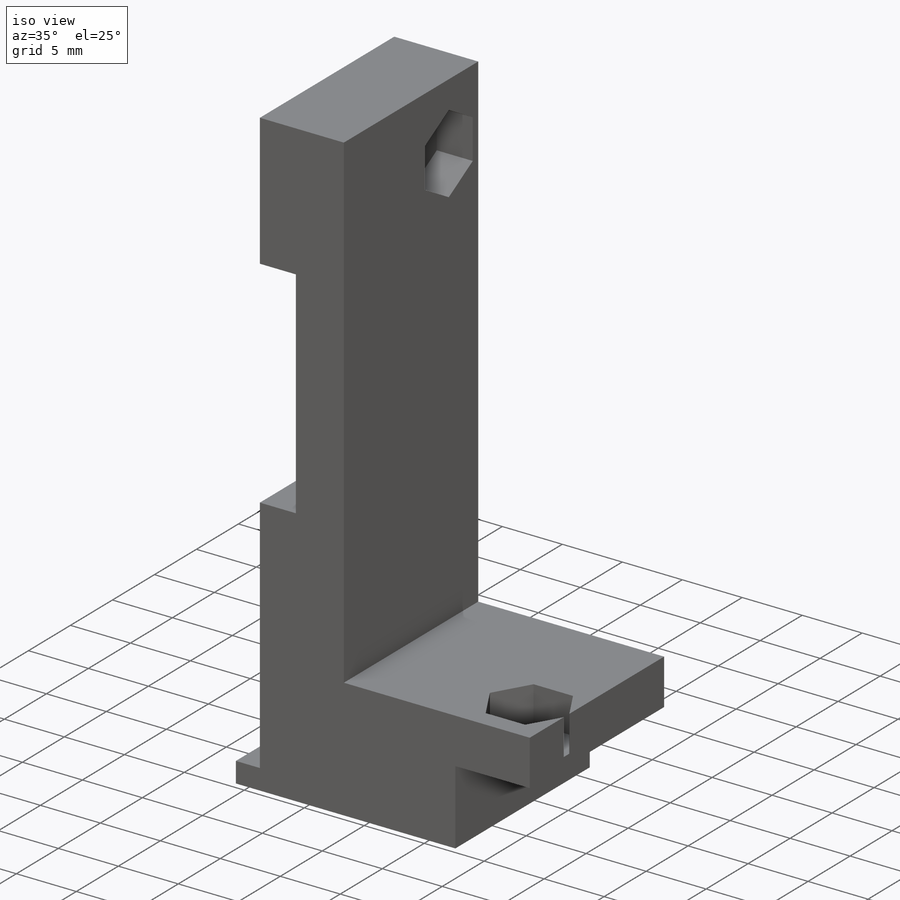
[diagram: iso view]
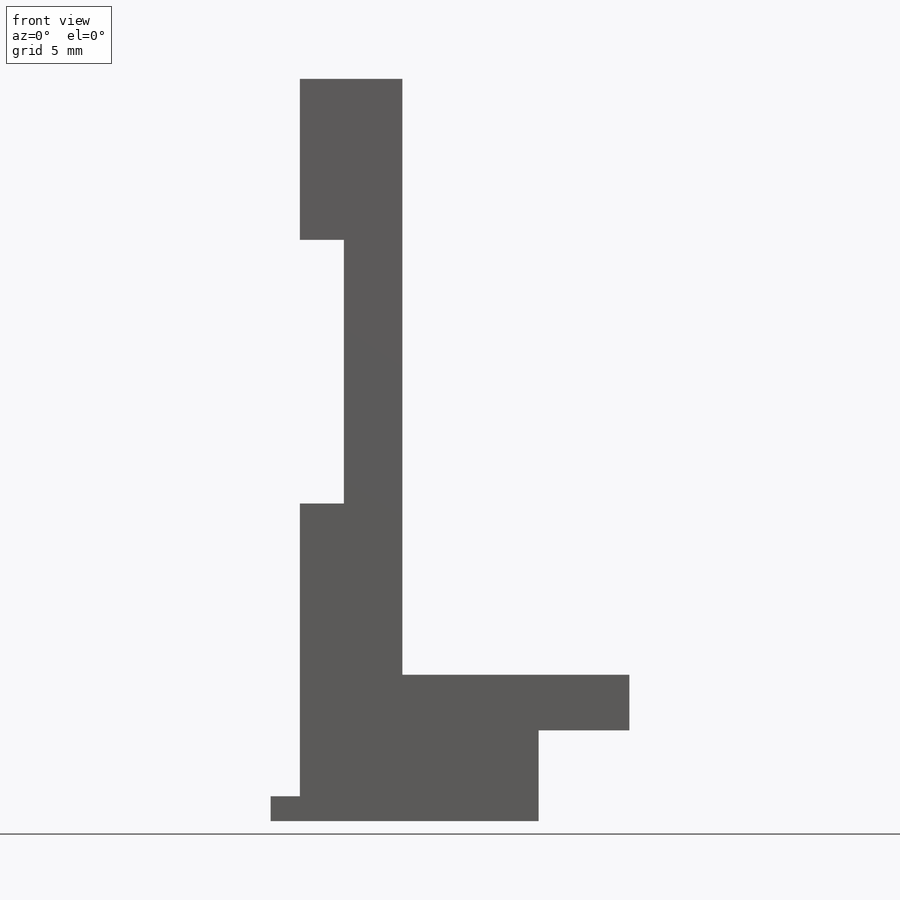
[diagram: front view]
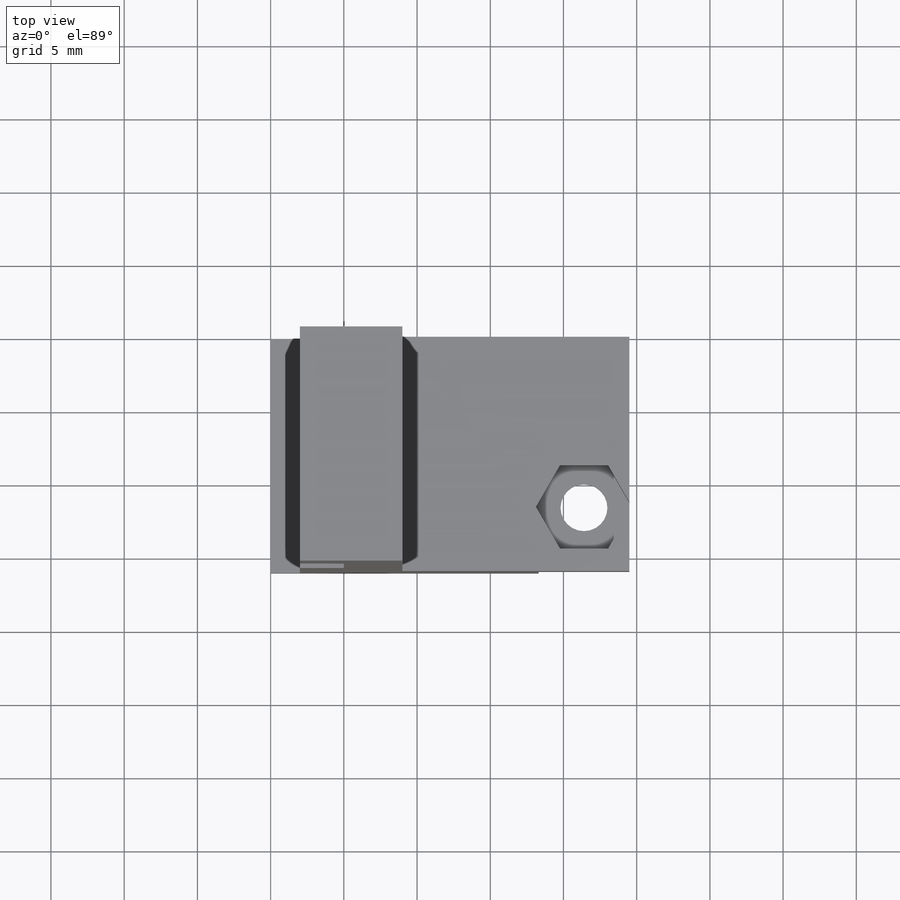
[diagram: top view]
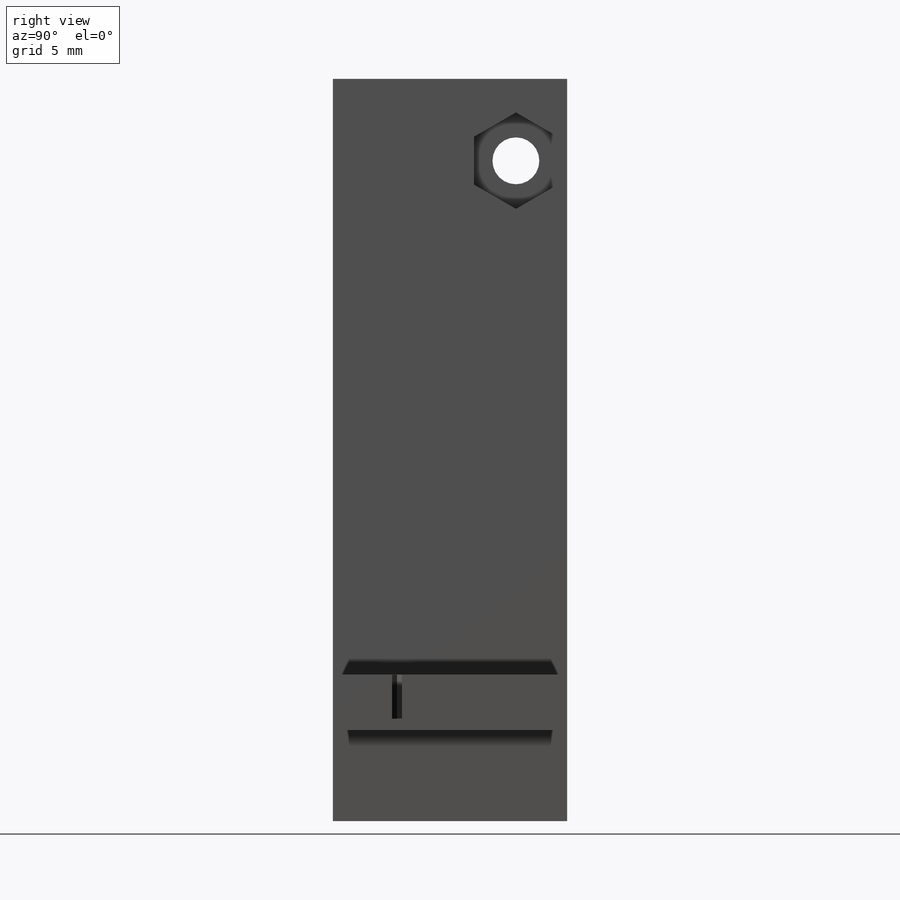
[diagram: right view]
SOLIDWORKS PART (.sldprt)
format: sldprt  version: not decoded by parser v0  size: 385,024 bytes
history: native  units: mm
features: sketch x6, cut_extrude x5, plane x3, material x1, extrude x1 (+13 scaffold rows collapsed)
feature tree (29):
  scaffold x13  (default folders/planes/origin — collapsed)
  material  "Material <sin especificar>"
  plane  "Alzado"
  plane  "Planta"
  plane  "Vista lateral"
  sketch  "Croquis1"  dims[c1.D1=1.7mm c1.D2=22.5mm c1.D3=2.0mm c1.D4=20.0mm c1.D5=45.0mm c1.D6=35.0mm c1.D7=3.0mm c1.D8=7.0mm c1.D9=10.0mm c2.D5=49.0mm c2.D6=18.0mm c2.D10=7.0mm]
  extrude  "Saliente-Extruir1"  Depth=16mm
  sketch  "Croquis2"  dims[D1=6.2mm]
  cut_extrude  "Cortar-Extruir1"  [1 undecoded]
  sketch  "Croquis3"  dims[D2=3.2mm D1=3.5mm D3=43.4mm]
  cut_extrude  "Cortar-Extruir2"  [1 undecoded]
  sketch  "Croquis4"  dims[D1=5.7mm]
  cut_extrude  "Cortar-Extruir3"  Depth=3mm
  sketch  "Croquis5"  dims[D1=3.2mm D2=11.62mm D3=3.1mm]
  cut_extrude  "Cortar-Extruir4"  [1 undecoded]
  sketch  "Croquis6"  dims[D1=5.7mm]
  cut_extrude  "Cortar-Extruir5"  Depth=3mm
decode coverage: 9 of 12 modeling features carry decoded parameters
note: 3 parameter values undecoded
summary: no parameter record found for 3 features
note: suppression state not decoded; provenance and decode notes live in map.json
